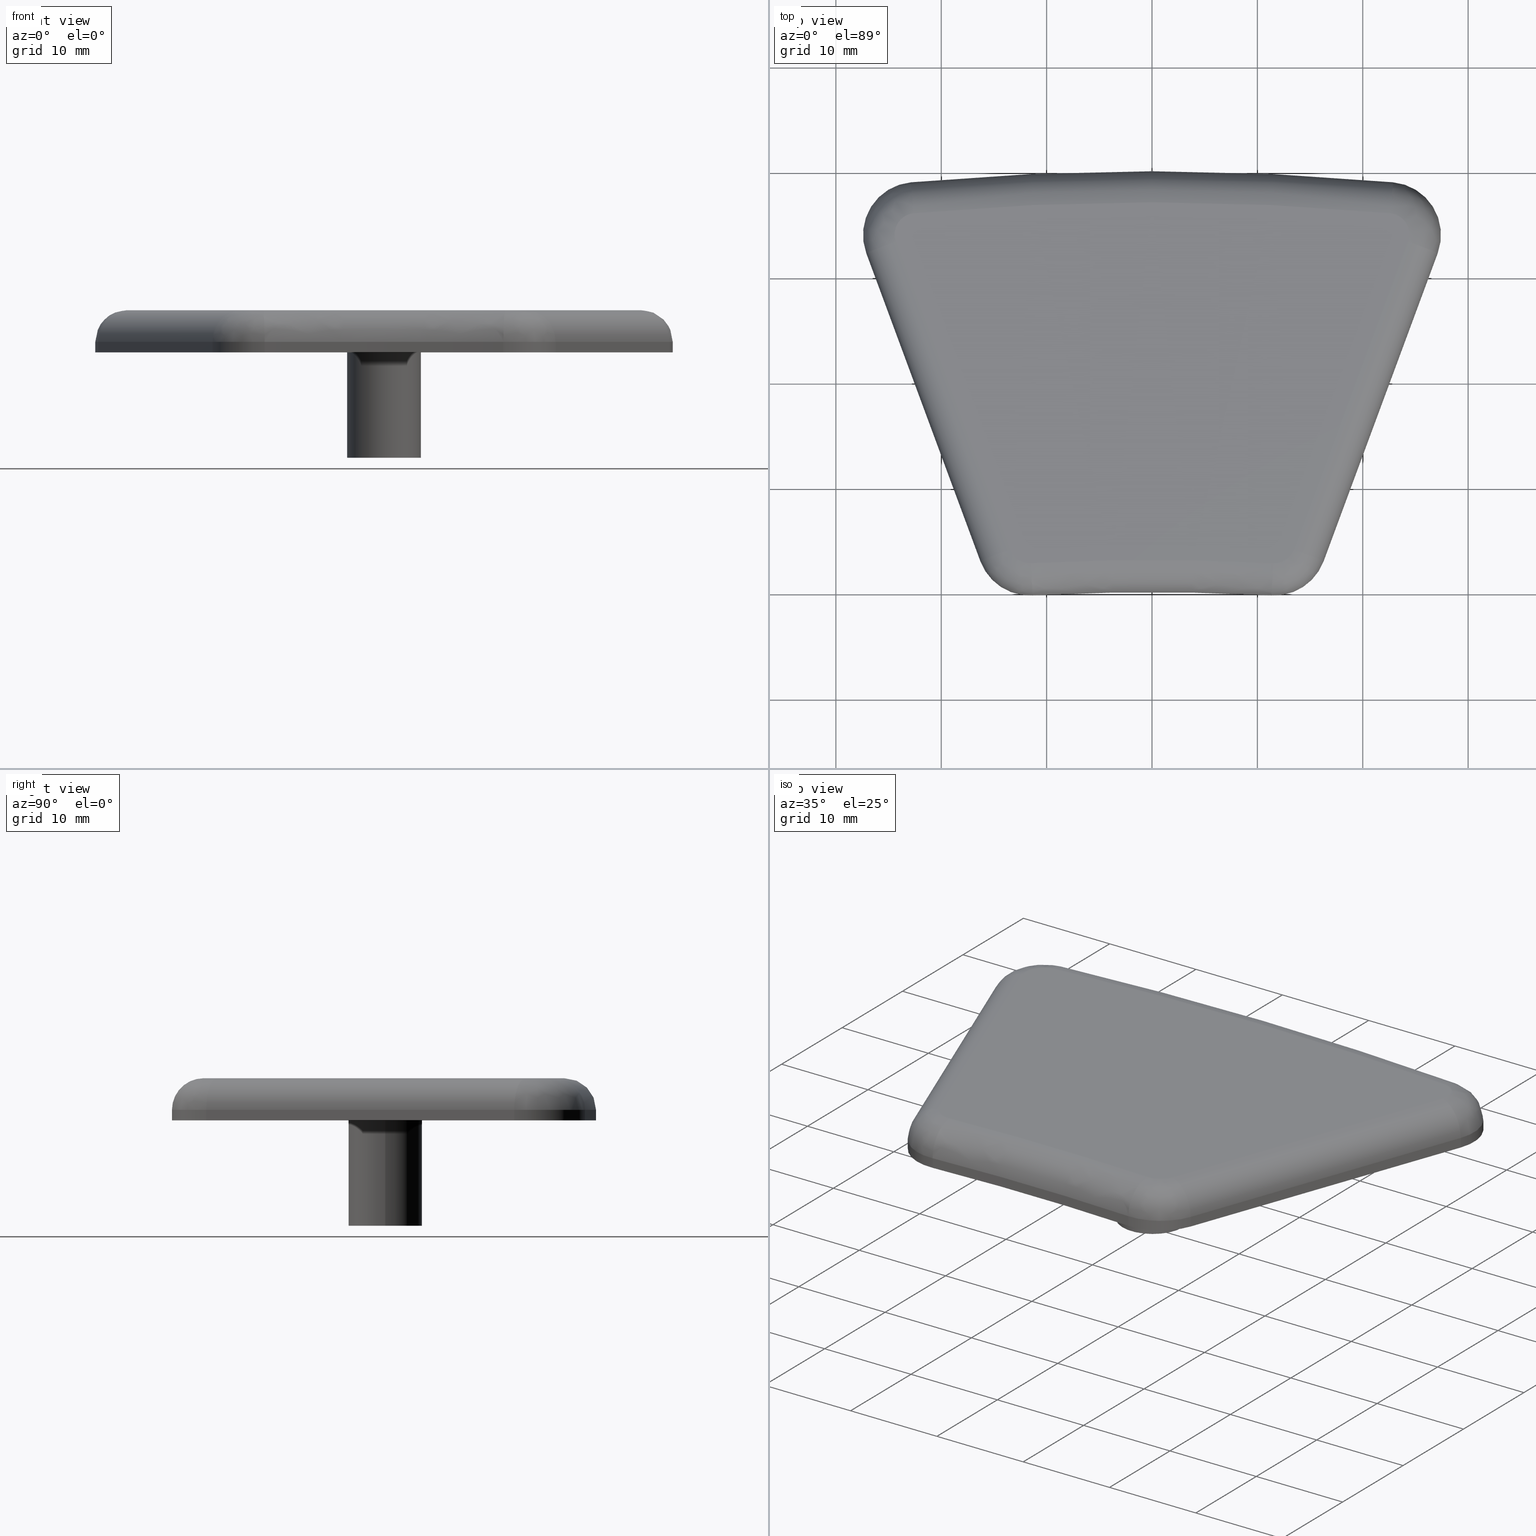
[diagram: canonical four-view strip — front | top / right | iso, engineering-drawing reading convention]
A machine part, canonical four-view strip (front | top / right | iso — engineering-drawing reading convention). The complete STEP part file that produces these views, byte-faithful:
ISO-10303-21;
HEADER;
/****************************************************************
 * Generated by software with PDE/Lib inside                    *
 * PDElib Version v4.4, created Mon 02/23/2004                  *
 * International Technegroup Inc. (www.iti-oh.com)              *
 ****************************************************************/
FILE_DESCRIPTION(('STEP AP203'),'2;1');
FILE_NAME('18.014.00.stp','2011-06-06T18:21:06',(''),(''),'2009.3.110','THINKDESIGN','');
FILE_SCHEMA(('CONFIG_CONTROL_DESIGN'));
ENDSEC;
DATA;
#2=CARTESIAN_POINT('',(-35.220002198517058,-24.523297898567506,0.0));
#3=DIRECTION('',(0.0,0.0,1.0));
#4=DIRECTION('',(1.0,0.0,0.0));
#5=AXIS2_PLACEMENT_3D('',#2,#3,#4);
#6=PLANE('',#5);
#7=CARTESIAN_POINT('',(22.883381529985783,18.950498793943183,0.0));
#8=VERTEX_POINT('',#7);
#9=CARTESIAN_POINT('',(27.114485447295095,12.234991950368126,0.0));
#10=VERTEX_POINT('',#9);
#11=CARTESIAN_POINT('',(22.425713899386064,13.971488818064330,0.0));
#12=DIRECTION('',(0.0,0.0,-1.0));
#13=DIRECTION('',(0.091533526119945,0.995801995175773,0.0));
#14=AXIS2_PLACEMENT_3D('',#11,#12,#13);
#15=CIRCLE('',#14,4.999999999999990);
#16=EDGE_CURVE('',#8,#10,#15,.T.);
#17=ORIENTED_EDGE('',*,*,#16,.T.);
#18=CARTESIAN_POINT('',(16.291249118133813,-16.989179714158627,0.0));
#19=VERTEX_POINT('',#18);
#20=CARTESIAN_POINT('',(16.291249118133813,-16.989179714158627,0.0));
#21=DIRECTION('',(0.347299373539241,0.937754309581807,0.0));
#22=VECTOR('',#21,31.163996119153349);
#23=LINE('',#20,#22);
#24=EDGE_CURVE('',#19,#10,#23,.T.);
#25=ORIENTED_EDGE('',*,*,#24,.F.);
#26=CARTESIAN_POINT('',(11.332728443000832,-20.245401084893473,0.0));
#27=VERTEX_POINT('',#26);
#28=CARTESIAN_POINT('',(11.602477570224773,-15.252682846462422,0.0));
#29=DIRECTION('',(0.0,0.0,-1.0));
#30=DIRECTION('',(0.937754309581807,-0.347299373539241,0.0));
#31=AXIS2_PLACEMENT_3D('',#28,#29,#30);
#32=CIRCLE('',#31,5.000000000000009);
#33=EDGE_CURVE('',#19,#27,#32,.T.);
#34=ORIENTED_EDGE('',*,*,#33,.T.);
#35=CARTESIAN_POINT('',(-11.332728443000939,-20.245401084893473,0.0));
#36=VERTEX_POINT('',#35);
#37=CARTESIAN_POINT('',(-3.907985E-014,-230.000000000000060,0.0));
#38=DIRECTION('',(0.0,0.0,-1.000000000000000));
#39=DIRECTION('',(0.071407991971395,0.997447190924218,0.0));
#40=AXIS2_PLACEMENT_3D('',#37,#38,#39);
#41=CIRCLE('',#40,210.060521040960960);
#42=EDGE_CURVE('',#36,#27,#41,.T.);
#43=ORIENTED_EDGE('',*,*,#42,.F.);
#44=CARTESIAN_POINT('',(-16.291249118133926,-16.989179714158624,0.0));
#45=VERTEX_POINT('',#44);
#46=CARTESIAN_POINT('',(-11.602477570224877,-15.252682846462420,0.0));
#47=DIRECTION('',(0.0,0.0,-1.0));
#48=DIRECTION('',(0.053949825444788,-0.998543647686208,0.0));
#49=AXIS2_PLACEMENT_3D('',#46,#47,#48);
#50=CIRCLE('',#49,5.000000000000015);
#51=EDGE_CURVE('',#36,#45,#50,.T.);
#52=ORIENTED_EDGE('',*,*,#51,.T.);
#53=CARTESIAN_POINT('',(-27.114485447295216,12.234991950368126,0.0));
#54=VERTEX_POINT('',#53);
#55=CARTESIAN_POINT('',(-27.114485447295216,12.234991950368133,0.0));
#56=DIRECTION('',(0.347299373539241,-0.937754309581807,0.0));
#57=VECTOR('',#56,31.163996119153353);
#58=LINE('',#55,#57);
#59=EDGE_CURVE('',#54,#45,#58,.T.);
#60=ORIENTED_EDGE('',*,*,#59,.F.);
#61=CARTESIAN_POINT('',(-22.883381529985897,18.950498793943183,0.0));
#62=VERTEX_POINT('',#61);
#63=CARTESIAN_POINT('',(-22.425713899386182,13.971488818064332,0.0));
#64=DIRECTION('',(0.0,0.0,-1.0));
#65=DIRECTION('',(-0.937754309581807,-0.347299373539241,0.0));
#66=AXIS2_PLACEMENT_3D('',#63,#64,#65);
#67=CIRCLE('',#66,5.000000000000001);
#68=EDGE_CURVE('',#54,#62,#67,.T.);
#69=ORIENTED_EDGE('',*,*,#68,.T.);
#70=CARTESIAN_POINT('',(-3.197442E-014,-230.0,0.0));
#71=DIRECTION('',(0.0,0.0,1.0));
#72=DIRECTION('',(0.117400000000000,0.993084709377805,0.0));
#73=AXIS2_PLACEMENT_3D('',#70,#71,#72);
#74=CIRCLE('',#73,250.0);
#75=EDGE_CURVE('',#8,#62,#74,.T.);
#76=ORIENTED_EDGE('',*,*,#75,.F.);
#77=EDGE_LOOP('',(#17,#25,#34,#43,#52,#60,#69,#76));
#78=FACE_OUTER_BOUND('',#77,.T.);
#79=CARTESIAN_POINT('',(-3.500000000000000,0.0,0.0));
#80=VERTEX_POINT('',#79);
#81=CARTESIAN_POINT('',(3.500000000000000,0.0,0.0));
#82=VERTEX_POINT('',#81);
#83=CARTESIAN_POINT('',(0.0,0.0,0.0));
#84=DIRECTION('',(0.0,0.0,-1.0));
#85=DIRECTION('',(1.0,0.0,0.0));
#86=AXIS2_PLACEMENT_3D('',#83,#84,#85);
#87=CIRCLE('',#86,3.500000000000000);
#88=EDGE_CURVE('',#80,#82,#87,.T.);
#89=ORIENTED_EDGE('',*,*,#88,.F.);
#90=CARTESIAN_POINT('',(0.0,0.0,0.0));
#91=DIRECTION('',(0.0,0.0,-1.0));
#92=DIRECTION('',(1.0,0.0,0.0));
#93=AXIS2_PLACEMENT_3D('',#90,#91,#92);
#94=CIRCLE('',#93,3.500000000000000);
#95=EDGE_CURVE('',#82,#80,#94,.T.);
#96=ORIENTED_EDGE('',*,*,#95,.F.);
#97=EDGE_LOOP('',(#89,#96));
#98=FACE_BOUND('',#97,.T.);
#99=ADVANCED_FACE('',(#78,#98),#6,.F.);
#100=CARTESIAN_POINT('',(-35.220002198517058,-24.523297898567506,4.0));
#101=DIRECTION('',(0.0,0.0,1.0));
#102=DIRECTION('',(1.0,0.0,0.0));
#103=AXIS2_PLACEMENT_3D('',#100,#101,#102);
#104=PLANE('',#103);
#105=CARTESIAN_POINT('',(13.477986189388396,-15.947281593540907,4.0));
#106=VERTEX_POINT('',#105);
#107=CARTESIAN_POINT('',(24.301222518549679,13.276890070985850,4.0));
#108=VERTEX_POINT('',#107);
#109=CARTESIAN_POINT('',(13.477986189388396,-15.947281593540907,4.0));
#110=DIRECTION('',(0.347299373539241,0.937754309581807,0.0));
#111=VECTOR('',#110,31.163996119153357);
#112=LINE('',#109,#111);
#113=EDGE_CURVE('',#106,#108,#112,.T.);
#114=ORIENTED_EDGE('',*,*,#113,.T.);
#115=CARTESIAN_POINT('',(22.608780951625953,15.963092808415865,4.0));
#116=VERTEX_POINT('',#115);
#117=CARTESIAN_POINT('',(22.425713899386064,13.971488818064330,4.0));
#118=DIRECTION('',(0.0,0.0,-1.0));
#119=DIRECTION('',(0.091533526119945,0.995801995175773,0.0));
#120=AXIS2_PLACEMENT_3D('',#117,#118,#119);
#121=CIRCLE('',#120,1.999999999999990);
#122=EDGE_CURVE('',#116,#108,#121,.T.);
#123=ORIENTED_EDGE('',*,*,#122,.F.);
#124=CARTESIAN_POINT('',(-22.608780951626066,15.963092808415876,4.0));
#125=VERTEX_POINT('',#124);
#126=CARTESIAN_POINT('',(-3.197442E-014,-230.0,4.0));
#127=DIRECTION('',(0.0,0.0,1.0));
#128=DIRECTION('',(0.117400000000000,0.993084709377805,0.0));
#129=AXIS2_PLACEMENT_3D('',#126,#127,#128);
#130=CIRCLE('',#129,247.0);
#131=EDGE_CURVE('',#116,#125,#130,.T.);
#132=ORIENTED_EDGE('',*,*,#131,.T.);
#133=CARTESIAN_POINT('',(-24.301222518549796,13.276890070985850,4.0));
#134=VERTEX_POINT('',#133);
#135=CARTESIAN_POINT('',(-22.425713899386182,13.971488818064332,4.0));
#136=DIRECTION('',(0.0,0.0,-1.0));
#137=DIRECTION('',(-0.937754309581807,-0.347299373539241,0.0));
#138=AXIS2_PLACEMENT_3D('',#135,#136,#137);
#139=CIRCLE('',#138,2.000000000000001);
#140=EDGE_CURVE('',#134,#125,#139,.T.);
#141=ORIENTED_EDGE('',*,*,#140,.F.);
#142=CARTESIAN_POINT('',(-13.477986189388506,-15.947281593540904,4.0));
#143=VERTEX_POINT('',#142);
#144=CARTESIAN_POINT('',(-24.301222518549796,13.276890070985850,4.0));
#145=DIRECTION('',(0.347299373539241,-0.937754309581807,0.0));
#146=VECTOR('',#145,31.163996119153349);
#147=LINE('',#144,#146);
#148=EDGE_CURVE('',#134,#143,#147,.T.);
#149=ORIENTED_EDGE('',*,*,#148,.T.);
#150=CARTESIAN_POINT('',(-11.494577919335303,-17.249770141834830,4.0));
#151=VERTEX_POINT('',#150);
#152=CARTESIAN_POINT('',(-11.602477570224877,-15.252682846462420,4.0));
#153=DIRECTION('',(0.0,0.0,-1.0));
#154=DIRECTION('',(0.053949825444788,-0.998543647686208,0.0));
#155=AXIS2_PLACEMENT_3D('',#152,#153,#154);
#156=CIRCLE('',#155,2.000000000000015);
#157=EDGE_CURVE('',#151,#143,#156,.T.);
#158=ORIENTED_EDGE('',*,*,#157,.F.);
#159=CARTESIAN_POINT('',(11.494577919335192,-17.249770141834844,4.0));
#160=VERTEX_POINT('',#159);
#161=CARTESIAN_POINT('',(-3.907985E-014,-230.000000000000060,4.000000000000002));
#162=DIRECTION('',(0.0,0.0,-1.000000000000000));
#163=DIRECTION('',(0.071407991971395,0.997447190924218,0.0));
#164=AXIS2_PLACEMENT_3D('',#161,#162,#163);
#165=CIRCLE('',#164,213.060521040960960);
#166=EDGE_CURVE('',#151,#160,#165,.T.);
#167=ORIENTED_EDGE('',*,*,#166,.T.);
#168=CARTESIAN_POINT('',(11.602477570224773,-15.252682846462422,4.0));
#169=DIRECTION('',(0.0,0.0,-1.0));
#170=DIRECTION('',(0.937754309581807,-0.347299373539241,0.0));
#171=AXIS2_PLACEMENT_3D('',#168,#169,#170);
#172=CIRCLE('',#171,2.000000000000009);
#173=EDGE_CURVE('',#106,#160,#172,.T.);
#174=ORIENTED_EDGE('',*,*,#173,.F.);
#175=EDGE_LOOP('',(#114,#123,#132,#141,#149,#158,#167,#174));
#176=FACE_OUTER_BOUND('',#175,.T.);
#177=ADVANCED_FACE('',(#176),#104,.T.);
#178=CARTESIAN_POINT('',(22.425713899386061,13.971488818064330,0.0));
#179=DIRECTION('',(0.0,0.0,-1.0));
#180=DIRECTION('',(0.091533526119945,0.995801995175773,0.0));
#181=AXIS2_PLACEMENT_3D('',#178,#179,#180);
#182=CYLINDRICAL_SURFACE('',#181,4.999999999999990);
#183=CARTESIAN_POINT('',(22.883381529985748,18.950498793943183,1.0));
#184=VERTEX_POINT('',#183);
#185=CARTESIAN_POINT('',(22.883381529985783,18.950498793943183,0.0));
#186=DIRECTION('',(0.0,0.0,1.0));
#187=VECTOR('',#186,1.0);
#188=LINE('',#185,#187);
#189=EDGE_CURVE('',#8,#184,#188,.T.);
#190=ORIENTED_EDGE('',*,*,#189,.T.);
#191=CARTESIAN_POINT('',(27.114485447295095,12.234991950368126,1.0));
#192=VERTEX_POINT('',#191);
#193=CARTESIAN_POINT('',(22.425713899386064,13.971488818064330,1.0));
#194=DIRECTION('',(0.0,0.0,-1.0));
#195=DIRECTION('',(0.091533526119945,0.995801995175773,0.0));
#196=AXIS2_PLACEMENT_3D('',#193,#194,#195);
#197=CIRCLE('',#196,4.999999999999990);
#198=EDGE_CURVE('',#184,#192,#197,.T.);
#199=ORIENTED_EDGE('',*,*,#198,.T.);
#200=CARTESIAN_POINT('',(27.114485447295095,12.234991950368126,0.0));
#201=DIRECTION('',(0.0,0.0,1.0));
#202=VECTOR('',#201,1.0);
#203=LINE('',#200,#202);
#204=EDGE_CURVE('',#10,#192,#203,.T.);
#205=ORIENTED_EDGE('',*,*,#204,.F.);
#206=ORIENTED_EDGE('',*,*,#16,.F.);
#207=EDGE_LOOP('',(#190,#199,#205,#206));
#208=FACE_OUTER_BOUND('',#207,.T.);
#209=ADVANCED_FACE('',(#208),#182,.T.);
#210=CARTESIAN_POINT('',(-3.552714E-014,-230.0,0.0));
#211=DIRECTION('',(0.0,0.0,1.0));
#212=DIRECTION('',(0.117400000000000,0.993084709377805,0.0));
#213=AXIS2_PLACEMENT_3D('',#210,#211,#212);
#214=CYLINDRICAL_SURFACE('',#213,250.0);
#215=ORIENTED_EDGE('',*,*,#75,.T.);
#216=CARTESIAN_POINT('',(-22.883381529985897,18.950498793943193,1.0));
#217=VERTEX_POINT('',#216);
#218=CARTESIAN_POINT('',(-22.883381529985897,18.950498793943183,0.0));
#219=DIRECTION('',(0.0,0.0,1.0));
#220=VECTOR('',#219,1.0);
#221=LINE('',#218,#220);
#222=EDGE_CURVE('',#62,#217,#221,.T.);
#223=ORIENTED_EDGE('',*,*,#222,.T.);
#224=CARTESIAN_POINT('',(-3.197442E-014,-230.0,1.0));
#225=DIRECTION('',(0.0,0.0,1.0));
#226=DIRECTION('',(0.117400000000000,0.993084709377805,0.0));
#227=AXIS2_PLACEMENT_3D('',#224,#225,#226);
#228=CIRCLE('',#227,250.0);
#229=EDGE_CURVE('',#184,#217,#228,.T.);
#230=ORIENTED_EDGE('',*,*,#229,.F.);
#231=ORIENTED_EDGE('',*,*,#189,.F.);
#232=EDGE_LOOP('',(#215,#223,#230,#231));
#233=FACE_OUTER_BOUND('',#232,.T.);
#234=ADVANCED_FACE('',(#233),#214,.T.);
#235=CARTESIAN_POINT('',(-22.425713899386182,13.971488818064330,0.0));
#236=DIRECTION('',(0.0,0.0,-1.0));
#237=DIRECTION('',(-0.937754309581807,-0.347299373539241,0.0));
#238=AXIS2_PLACEMENT_3D('',#235,#236,#237);
#239=CYLINDRICAL_SURFACE('',#238,5.000000000000001);
#240=CARTESIAN_POINT('',(-27.114485447295216,12.234991950368126,1.0));
#241=VERTEX_POINT('',#240);
#242=CARTESIAN_POINT('',(-27.114485447295216,12.234991950368126,0.0));
#243=DIRECTION('',(0.0,0.0,1.0));
#244=VECTOR('',#243,1.0);
#245=LINE('',#242,#244);
#246=EDGE_CURVE('',#54,#241,#245,.T.);
#247=ORIENTED_EDGE('',*,*,#246,.T.);
#248=CARTESIAN_POINT('',(-22.425713899386182,13.971488818064332,1.0));
#249=DIRECTION('',(0.0,0.0,-1.0));
#250=DIRECTION('',(-0.937754309581807,-0.347299373539241,0.0));
#251=AXIS2_PLACEMENT_3D('',#248,#249,#250);
#252=CIRCLE('',#251,5.000000000000001);
#253=EDGE_CURVE('',#241,#217,#252,.T.);
#254=ORIENTED_EDGE('',*,*,#253,.T.);
#255=ORIENTED_EDGE('',*,*,#222,.F.);
#256=ORIENTED_EDGE('',*,*,#68,.F.);
#257=EDGE_LOOP('',(#247,#254,#255,#256));
#258=FACE_OUTER_BOUND('',#257,.T.);
#259=ADVANCED_FACE('',(#258),#239,.T.);
#260=CARTESIAN_POINT('',(-29.350000000000055,18.271177344451317,0.0));
#261=DIRECTION('',(-0.937754309581807,-0.347299373539241,0.0));
#262=DIRECTION('',(0.347299373539241,-0.937754309581807,0.0));
#263=AXIS2_PLACEMENT_3D('',#260,#261,#262);
#264=PLANE('',#263);
#265=ORIENTED_EDGE('',*,*,#59,.T.);
#266=CARTESIAN_POINT('',(-16.291249118133926,-16.989179714158624,1.0));
#267=VERTEX_POINT('',#266);
#268=CARTESIAN_POINT('',(-16.291249118133926,-16.989179714158624,0.0));
#269=DIRECTION('',(0.0,0.0,1.0));
#270=VECTOR('',#269,1.0);
#271=LINE('',#268,#270);
#272=EDGE_CURVE('',#45,#267,#271,.T.);
#273=ORIENTED_EDGE('',*,*,#272,.T.);
#274=CARTESIAN_POINT('',(-27.114485447295216,12.234991950368126,1.0));
#275=DIRECTION('',(0.347299373539241,-0.937754309581807,0.0));
#276=VECTOR('',#275,31.163996119153346);
#277=LINE('',#274,#276);
#278=EDGE_CURVE('',#241,#267,#277,.T.);
#279=ORIENTED_EDGE('',*,*,#278,.F.);
#280=ORIENTED_EDGE('',*,*,#246,.F.);
#281=EDGE_LOOP('',(#265,#273,#279,#280));
#282=FACE_OUTER_BOUND('',#281,.T.);
#283=ADVANCED_FACE('',(#282),#264,.T.);
#284=CARTESIAN_POINT('',(-11.602477570224877,-15.252682846462420,0.0));
#285=DIRECTION('',(0.0,0.0,-1.0));
#286=DIRECTION('',(0.053949825444788,-0.998543647686208,0.0));
#287=AXIS2_PLACEMENT_3D('',#284,#285,#286);
#288=CYLINDRICAL_SURFACE('',#287,5.000000000000015);
#289=CARTESIAN_POINT('',(-11.332728443000917,-20.245401084893473,1.0));
#290=VERTEX_POINT('',#289);
#291=CARTESIAN_POINT('',(-11.332728443000939,-20.245401084893473,0.0));
#292=DIRECTION('',(0.0,0.0,1.0));
#293=VECTOR('',#292,1.0);
#294=LINE('',#291,#293);
#295=EDGE_CURVE('',#36,#290,#294,.T.);
#296=ORIENTED_EDGE('',*,*,#295,.T.);
#297=CARTESIAN_POINT('',(-11.602477570224877,-15.252682846462420,1.0));
#298=DIRECTION('',(0.0,0.0,-1.0));
#299=DIRECTION('',(0.053949825444788,-0.998543647686208,0.0));
#300=AXIS2_PLACEMENT_3D('',#297,#298,#299);
#301=CIRCLE('',#300,5.000000000000015);
#302=EDGE_CURVE('',#290,#267,#301,.T.);
#303=ORIENTED_EDGE('',*,*,#302,.T.);
#304=ORIENTED_EDGE('',*,*,#272,.F.);
#305=ORIENTED_EDGE('',*,*,#51,.F.);
#306=EDGE_LOOP('',(#296,#303,#304,#305));
#307=FACE_OUTER_BOUND('',#306,.T.);
#308=ADVANCED_FACE('',(#307),#288,.T.);
#309=CARTESIAN_POINT('',(-3.552714E-014,-230.0,0.0));
#310=DIRECTION('',(0.0,0.0,-1.0));
#311=DIRECTION('',(-0.071407991971396,0.997447190924218,0.0));
#312=AXIS2_PLACEMENT_3D('',#309,#310,#311);
#313=CYLINDRICAL_SURFACE('',#312,210.060521040960960);
#314=ORIENTED_EDGE('',*,*,#42,.T.);
#315=CARTESIAN_POINT('',(11.332728443000832,-20.245401084893466,1.0));
#316=VERTEX_POINT('',#315);
#317=CARTESIAN_POINT('',(11.332728443000832,-20.245401084893473,0.0));
#318=DIRECTION('',(0.0,0.0,1.0));
#319=VECTOR('',#318,1.0);
#320=LINE('',#317,#319);
#321=EDGE_CURVE('',#27,#316,#320,.T.);
#322=ORIENTED_EDGE('',*,*,#321,.T.);
#323=CARTESIAN_POINT('',(-3.907985E-014,-230.000000000000060,1.000000000000000));
#324=DIRECTION('',(0.0,0.0,-1.000000000000000));
#325=DIRECTION('',(0.071407991971395,0.997447190924218,0.0));
#326=AXIS2_PLACEMENT_3D('',#323,#324,#325);
#327=CIRCLE('',#326,210.060521040960960);
#328=EDGE_CURVE('',#290,#316,#327,.T.);
#329=ORIENTED_EDGE('',*,*,#328,.F.);
#330=ORIENTED_EDGE('',*,*,#295,.F.);
#331=EDGE_LOOP('',(#314,#322,#329,#330));
#332=FACE_OUTER_BOUND('',#331,.T.);
#333=ADVANCED_FACE('',(#332),#313,.F.);
#334=CARTESIAN_POINT('',(11.602477570224771,-15.252682846462420,0.0));
#335=DIRECTION('',(0.0,0.0,-1.0));
#336=DIRECTION('',(0.937754309581807,-0.347299373539241,0.0));
#337=AXIS2_PLACEMENT_3D('',#334,#335,#336);
#338=CYLINDRICAL_SURFACE('',#337,5.000000000000009);
#339=CARTESIAN_POINT('',(16.291249118133813,-16.989179714158627,1.0));
#340=VERTEX_POINT('',#339);
#341=CARTESIAN_POINT('',(16.291249118133813,-16.989179714158627,0.0));
#342=DIRECTION('',(0.0,0.0,1.0));
#343=VECTOR('',#342,1.0);
#344=LINE('',#341,#343);
#345=EDGE_CURVE('',#19,#340,#344,.T.);
#346=ORIENTED_EDGE('',*,*,#345,.T.);
#347=CARTESIAN_POINT('',(11.602477570224773,-15.252682846462422,1.0));
#348=DIRECTION('',(0.0,0.0,-1.0));
#349=DIRECTION('',(0.937754309581807,-0.347299373539241,0.0));
#350=AXIS2_PLACEMENT_3D('',#347,#348,#349);
#351=CIRCLE('',#350,5.000000000000009);
#352=EDGE_CURVE('',#340,#316,#351,.T.);
#353=ORIENTED_EDGE('',*,*,#352,.T.);
#354=ORIENTED_EDGE('',*,*,#321,.F.);
#355=ORIENTED_EDGE('',*,*,#33,.F.);
#356=EDGE_LOOP('',(#346,#353,#354,#355));
#357=FACE_OUTER_BOUND('',#356,.T.);
#358=ADVANCED_FACE('',(#357),#338,.T.);
#359=CARTESIAN_POINT('',(14.999999999999950,-20.475723363615913,0.0));
#360=DIRECTION('',(0.937754309581807,-0.347299373539241,0.0));
#361=DIRECTION('',(0.347299373539241,0.937754309581807,0.0));
#362=AXIS2_PLACEMENT_3D('',#359,#360,#361);
#363=PLANE('',#362);
#364=ORIENTED_EDGE('',*,*,#24,.T.);
#365=ORIENTED_EDGE('',*,*,#204,.T.);
#366=CARTESIAN_POINT('',(16.291249118133813,-16.989179714158627,1.0));
#367=DIRECTION('',(0.347299373539241,0.937754309581807,0.0));
#368=VECTOR('',#367,31.163996119153353);
#369=LINE('',#366,#368);
#370=EDGE_CURVE('',#340,#192,#369,.T.);
#371=ORIENTED_EDGE('',*,*,#370,.F.);
#372=ORIENTED_EDGE('',*,*,#345,.F.);
#373=EDGE_LOOP('',(#364,#365,#371,#372));
#374=FACE_OUTER_BOUND('',#373,.T.);
#375=ADVANCED_FACE('',(#374),#363,.T.);
#376=CARTESIAN_POINT('',(13.477986189388396,-15.947281593540907,1.0));
#377=DIRECTION('',(-0.347299373539241,-0.937754309581807,0.0));
#378=DIRECTION('',(0.937754309581807,-0.347299373539241,0.0));
#379=AXIS2_PLACEMENT_3D('',#376,#377,#378);
#380=CYLINDRICAL_SURFACE('',#379,2.999999999999996);
#381=ORIENTED_EDGE('',*,*,#370,.T.);
#382=CARTESIAN_POINT('',(24.301222518549679,13.276890070985857,1.0));
#383=DIRECTION('',(0.347299373539241,0.937754309581807,0.0));
#384=DIRECTION('',(0.937754309581807,-0.347299373539241,0.0));
#385=AXIS2_PLACEMENT_3D('',#382,#383,#384);
#386=CIRCLE('',#385,2.999999999999996);
#387=EDGE_CURVE('',#108,#192,#386,.T.);
#388=ORIENTED_EDGE('',*,*,#387,.F.);
#389=ORIENTED_EDGE('',*,*,#113,.F.);
#390=CARTESIAN_POINT('',(13.477986189388398,-15.947281593540907,1.0));
#391=DIRECTION('',(-0.347299373539241,-0.937754309581807,0.0));
#392=DIRECTION('',(0.937754309581807,-0.347299373539241,0.0));
#393=AXIS2_PLACEMENT_3D('',#390,#391,#392);
#394=CIRCLE('',#393,2.999999999999996);
#395=EDGE_CURVE('',#340,#106,#394,.T.);
#396=ORIENTED_EDGE('',*,*,#395,.F.);
#397=EDGE_LOOP('',(#381,#388,#389,#396));
#398=FACE_OUTER_BOUND('',#397,.T.);
#399=ADVANCED_FACE('',(#398),#380,.T.);
#400=CARTESIAN_POINT('',(16.291249118133813,-16.989179714158627,1.0));
#401=CARTESIAN_POINT('',(16.291249118133813,-16.989179714158627,1.390180644032257));
#402=CARTESIAN_POINT('',(16.144850358430009,-16.934960611124346,2.179083452029826));
#403=CARTESIAN_POINT('',(15.518763441268515,-16.703087942676394,3.176238734418841));
#404=CARTESIAN_POINT('',(14.583676777885955,-16.356776537781350,3.843883671652662));
#405=CARTESIAN_POINT('',(13.843879769845046,-16.082791086780446,4.0));
#406=CARTESIAN_POINT('',(13.477986189388393,-15.947281593540906,4.0));
#407=CARTESIAN_POINT('',(16.108229000586050,-17.483358273197112,1.0));
#408=CARTESIAN_POINT('',(16.108229000586050,-17.483358273197112,1.390180644032256));
#409=CARTESIAN_POINT('',(15.967544726635300,-17.413709301725820,2.179083452029826));
#410=CARTESIAN_POINT('',(15.365896300452340,-17.115849470671556,3.176238734418841));
#411=CARTESIAN_POINT('',(14.467309532469020,-16.670983513658783,3.843883671652662));
#412=CARTESIAN_POINT('',(13.756389541358800,-16.319026292082349,4.0));
#413=CARTESIAN_POINT('',(13.404778142369283,-16.144953017156297,4.0));
#414=CARTESIAN_POINT('',(15.580730669893455,-18.419984802746466,1.000000000000000));
#415=CARTESIAN_POINT('',(15.580730669893455,-18.419984802746466,1.390180644032256));
#416=CARTESIAN_POINT('',(15.456516616462121,-18.321091292309994,2.179083452029825));
#417=CARTESIAN_POINT('',(14.925304508256403,-17.898164669149232,3.176238734418839));
#418=CARTESIAN_POINT('',(14.131917289653389,-17.266506293823277,3.843883671652662));
#419=CARTESIAN_POINT('',(13.504226281402662,-16.766767612405555,3.999999999999999));
#420=CARTESIAN_POINT('',(13.193778810092248,-16.519603628976046,3.999999999999999));
#421=CARTESIAN_POINT('',(14.393379331441839,-19.502622426625813,1.000000000000000));
#422=CARTESIAN_POINT('',(14.393379331441839,-19.502622426625813,1.390180644032257));
#423=CARTESIAN_POINT('',(14.306238264293974,-19.369925434035174,2.179083452029827));
#424=CARTESIAN_POINT('',(13.933571978055264,-18.802435305186030,3.176238734418841));
#425=CARTESIAN_POINT('',(13.376979491289987,-17.954865364747235,3.843883671652663));
#426=CARTESIAN_POINT('',(12.936629444036086,-17.284307511025048,4.000000000000001));
#427=CARTESIAN_POINT('',(12.718838274711603,-16.952658678527783,4.000000000000001));
#428=CARTESIAN_POINT('',(12.928058967339975,-20.161973362099719,1.000000000000000));
#429=CARTESIAN_POINT('',(12.928058967339975,-20.161973362099719,1.390180644032256));
#430=CARTESIAN_POINT('',(12.886669987211345,-20.008689280081381,2.179083452029826));
#431=CARTESIAN_POINT('',(12.709666445476277,-19.353156688446326,3.176238734418841));
#432=CARTESIAN_POINT('',(12.445304347002272,-18.374091694356320,3.843883671652663));
#433=CARTESIAN_POINT('',(12.236153369719567,-17.599501079743909,3.999999999999999));
#434=CARTESIAN_POINT('',(12.132710129070848,-17.216399052717350,3.999999999999999));
#435=CARTESIAN_POINT('',(11.858941818837684,-20.273831609526919,1.0));
#436=CARTESIAN_POINT('',(11.858941818837684,-20.273831609526919,1.390180644032256));
#437=CARTESIAN_POINT('',(11.850934167468525,-20.117054947731827,2.179083452029826));
#438=CARTESIAN_POINT('',(11.816688756034941,-19.446586037580246,3.176238734418841));
#439=CARTESIAN_POINT('',(11.765541819985286,-18.445213035030093,3.843883671652663));
#440=CARTESIAN_POINT('',(11.725076746808941,-17.652973363319077,4.0));
#441=CARTESIAN_POINT('',(11.705063269669935,-17.261142351688211,4.0));
#442=CARTESIAN_POINT('',(11.332728443000832,-20.245401084893466,1.0));
#443=CARTESIAN_POINT('',(11.332728443000832,-20.245401084893466,1.390180644032256));
#444=CARTESIAN_POINT('',(11.341150891664252,-20.089512116922144,2.179083452029826));
#445=CARTESIAN_POINT('',(11.377170219487107,-19.422839505937443,3.176238734418840));
#446=CARTESIAN_POINT('',(11.430966572913347,-18.427136432951151,3.843883671652662));
#447=CARTESIAN_POINT('',(11.473527741697717,-17.639382545383366,4.0));
#448=CARTESIAN_POINT('',(11.494577919335192,-17.249770141834844,4.0));
#449=B_SPLINE_SURFACE_WITH_KNOTS('',3,3,((#400,#407,#414,#421,#428,#435,#442),(#401,#408,#415,#422,#429,#436,#443),(#402,#409,#416,#423,#430,#437,#444),(#403,#410,#417,#424,#431,#438,#445),(#404,#411,#418,#425,#432,#439,#446),(#405,#412,#419,#426,#433,#440,#447),(#406,#413,#420,#427,#434,#441,#448)),.UNSPECIFIED.,.F.,.F.,.U.,(4,1,1,1,4),(4,1,1,1,4),(0.0,1.170541932096769,2.341083864193539,3.511625796290308,4.682167728387078),(0.0,1.204109657954585,2.408219315909169,3.612328973863754,4.816438631818338),.UNSPECIFIED.);
#450=ORIENTED_EDGE('',*,*,#395,.T.);
#451=ORIENTED_EDGE('',*,*,#173,.T.);
#452=CARTESIAN_POINT('',(11.494577919335194,-17.249770141834833,1.0));
#453=DIRECTION('',(0.998543647686208,-0.053949825444777,0.0));
#454=DIRECTION('',(-0.053949825444777,-0.998543647686208,0.0));
#455=AXIS2_PLACEMENT_3D('',#452,#453,#454);
#456=CIRCLE('',#455,3.000000000000019);
#457=EDGE_CURVE('',#160,#316,#456,.T.);
#458=ORIENTED_EDGE('',*,*,#457,.T.);
#459=ORIENTED_EDGE('',*,*,#352,.F.);
#460=EDGE_LOOP('',(#450,#451,#458,#459));
#461=FACE_OUTER_BOUND('',#460,.T.);
#462=ADVANCED_FACE('',(#461),#449,.T.);
#463=CARTESIAN_POINT('',(-11.332728443000919,-20.245401084893473,1.0));
#464=CARTESIAN_POINT('',(-11.332728443000919,-20.245401084893469,1.390180644032259));
#465=CARTESIAN_POINT('',(-11.341150891664341,-20.089512116922140,2.179083452029833));
#466=CARTESIAN_POINT('',(-11.377170219487205,-19.422839505937439,3.176238734418849));
#467=CARTESIAN_POINT('',(-11.430966572913450,-18.427136432951144,3.843883671652669));
#468=CARTESIAN_POINT('',(-11.473527741697826,-17.639382545383352,4.000000000000002));
#469=CARTESIAN_POINT('',(-11.494577919335303,-17.249770141834830,4.0));
#470=CARTESIAN_POINT('',(-9.445832262894417,-20.143454895775882,1.0));
#471=CARTESIAN_POINT('',(-9.445832262894417,-20.143454895775882,1.390180644032257));
#472=CARTESIAN_POINT('',(-9.452852376163492,-19.987490161712692,2.179083452029825));
#473=CARTESIAN_POINT('',(-9.482874495774688,-19.320493530504223,3.176238734418841));
#474=CARTESIAN_POINT('',(-9.527713771097970,-18.324306519934165,3.843883671652664));
#475=CARTESIAN_POINT('',(-9.563188516943333,-17.536169763493817,4.0));
#476=CARTESIAN_POINT('',(-9.580733845772821,-17.146367998186456,4.0));
#477=CARTESIAN_POINT('',(-5.669092009411111,-19.990479909390430,1.000000000000000));
#478=CARTESIAN_POINT('',(-5.669092009411111,-19.990479909390430,1.390180644032252));
#479=CARTESIAN_POINT('',(-5.673305261026346,-19.834401484791371,2.179083452029814));
#480=CARTESIAN_POINT('',(-5.691323594790542,-19.166918646204792,3.176238734418828));
#481=CARTESIAN_POINT('',(-5.718234720286768,-18.170005464838855,3.843883671652656));
#482=CARTESIAN_POINT('',(-5.739525549152941,-17.381294195892711,3.999999999999998));
#483=CARTESIAN_POINT('',(-5.750055704749762,-16.991208284481107,4.000000000000001));
#484=CARTESIAN_POINT('',(-2.375877E-014,-19.913978483863335,1.000000000000000));
#485=CARTESIAN_POINT('',(-2.375877E-014,-19.913978483863335,1.390180644032258));
#486=CARTESIAN_POINT('',(-2.464695E-014,-19.757843203641844,2.179083452029829));
#487=CARTESIAN_POINT('',(-3.375078E-014,-19.090117217084423,3.176238734418849));
#488=CARTESIAN_POINT('',(-4.463097E-014,-18.092840884183865,3.843883671652668));
#489=CARTESIAN_POINT('',(-5.306866E-014,-17.303842306660577,4.0));
#490=CARTESIAN_POINT('',(-5.795364E-014,-16.913614296317995,3.999999999999999));
#491=CARTESIAN_POINT('',(5.669092009411053,-19.990479909390430,1.000000000000000));
#492=CARTESIAN_POINT('',(5.669092009411053,-19.990479909390430,1.390180644032253));
#493=CARTESIAN_POINT('',(5.673305261026282,-19.834401484791375,2.179083452029815));
#494=CARTESIAN_POINT('',(5.691323594790472,-19.166918646204792,3.176238734418826));
#495=CARTESIAN_POINT('',(5.718234720286676,-18.170005464838859,3.843883671652656));
#496=CARTESIAN_POINT('',(5.739525549152834,-17.381294195892714,3.999999999999998));
#497=CARTESIAN_POINT('',(5.750055704749649,-16.991208284481111,4.000000000000001));
#498=CARTESIAN_POINT('',(9.445832262894363,-20.143454895775882,1.0));
#499=CARTESIAN_POINT('',(9.445832262894363,-20.143454895775882,1.390180644032256));
#500=CARTESIAN_POINT('',(9.452852376163435,-19.987490161712692,2.179083452029825));
#501=CARTESIAN_POINT('',(9.482874495774619,-19.320493530504223,3.176238734418839));
#502=CARTESIAN_POINT('',(9.527713771097883,-18.324306519934165,3.843883671652663));
#503=CARTESIAN_POINT('',(9.563188516943232,-17.536169763493817,4.000000000000000));
#504=CARTESIAN_POINT('',(9.580733845772713,-17.146367998186456,4.0));
#505=CARTESIAN_POINT('',(11.332728443000864,-20.245401084893473,1.0));
#506=CARTESIAN_POINT('',(11.332728443000864,-20.245401084893473,1.390180644032259));
#507=CARTESIAN_POINT('',(11.341150891664284,-20.089512116922140,2.179083452029831));
#508=CARTESIAN_POINT('',(11.377170219487134,-19.422839505937439,3.176238734418848));
#509=CARTESIAN_POINT('',(11.430966572913363,-18.427136432951144,3.843883671652669));
#510=CARTESIAN_POINT('',(11.473527741697724,-17.639382545383352,4.000000000000002));
#511=CARTESIAN_POINT('',(11.494577919335194,-17.249770141834830,4.0));
#512=B_SPLINE_SURFACE_WITH_KNOTS('',3,3,((#463,#470,#477,#484,#491,#498,#505),(#464,#471,#478,#485,#492,#499,#506),(#465,#472,#479,#486,#493,#500,#507),(#466,#473,#480,#487,#494,#501,#508),(#467,#474,#481,#488,#495,#502,#509),(#468,#475,#482,#489,#496,#503,#510),(#469,#476,#483,#490,#497,#504,#511)),.UNSPECIFIED.,.F.,.F.,.U.,(4,1,1,1,4),(4,1,1,1,4),(0.0,1.170541932096770,2.341083864193539,3.511625796290308,4.682167728387078),(0.0,5.701107811502860,11.402215623005713,17.103323434508575,22.804431246011429),.UNSPECIFIED.);
#513=ORIENTED_EDGE('',*,*,#457,.F.);
#514=ORIENTED_EDGE('',*,*,#166,.F.);
#515=CARTESIAN_POINT('',(-11.494577919335306,-17.249770141834830,1.0));
#516=DIRECTION('',(-0.998543647686207,-0.053949825444795,0.0));
#517=DIRECTION('',(0.053949825444795,-0.998543647686207,0.0));
#518=AXIS2_PLACEMENT_3D('',#515,#516,#517);
#519=CIRCLE('',#518,3.000000000000021);
#520=EDGE_CURVE('',#290,#151,#519,.T.);
#521=ORIENTED_EDGE('',*,*,#520,.F.);
#522=ORIENTED_EDGE('',*,*,#328,.T.);
#523=EDGE_LOOP('',(#513,#514,#521,#522));
#524=FACE_OUTER_BOUND('',#523,.T.);
#525=ADVANCED_FACE('',(#524),#512,.F.);
#526=CARTESIAN_POINT('',(-11.332728443000939,-20.245401084893473,1.0));
#527=CARTESIAN_POINT('',(-11.332728443000939,-20.245401084893473,1.390180644032256));
#528=CARTESIAN_POINT('',(-11.341150891664359,-20.089512116922148,2.179083452029824));
#529=CARTESIAN_POINT('',(-11.377170219487221,-19.422839505937457,3.176238734418842));
#530=CARTESIAN_POINT('',(-11.430966572913455,-18.427136432951166,3.843883671652662));
#531=CARTESIAN_POINT('',(-11.473527741697827,-17.639382545383373,4.0));
#532=CARTESIAN_POINT('',(-11.494577919335303,-17.249770141834851,4.0));
#533=CARTESIAN_POINT('',(-11.858941818837792,-20.273831609526919,1.0));
#534=CARTESIAN_POINT('',(-11.858941818837792,-20.273831609526919,1.390180644032256));
#535=CARTESIAN_POINT('',(-11.850934167468631,-20.117054947731830,2.179083452029824));
#536=CARTESIAN_POINT('',(-11.816688756035054,-19.446586037580264,3.176238734418841));
#537=CARTESIAN_POINT('',(-11.765541819985394,-18.445213035030104,3.843883671652662));
#538=CARTESIAN_POINT('',(-11.725076746809052,-17.652973363319084,4.000000000000000));
#539=CARTESIAN_POINT('',(-11.705063269670045,-17.261142351688225,4.0));
#540=CARTESIAN_POINT('',(-12.928058967340089,-20.161973362099733,1.0));
#541=CARTESIAN_POINT('',(-12.928058967340089,-20.161973362099733,1.390180644032256));
#542=CARTESIAN_POINT('',(-12.886669987211455,-20.008689280081395,2.179083452029826));
#543=CARTESIAN_POINT('',(-12.709666445476397,-19.353156688446354,3.176238734418840));
#544=CARTESIAN_POINT('',(-12.445304347002391,-18.374091694356338,3.843883671652662));
#545=CARTESIAN_POINT('',(-12.236153369719686,-17.599501079743924,4.000000000000000));
#546=CARTESIAN_POINT('',(-12.132710129070968,-17.216399052717364,4.0));
#547=CARTESIAN_POINT('',(-14.393379331441940,-19.502622426625805,1.000000000000000));
#548=CARTESIAN_POINT('',(-14.393379331441940,-19.502622426625805,1.390180644032256));
#549=CARTESIAN_POINT('',(-14.306238264294082,-19.369925434035174,2.179083452029826));
#550=CARTESIAN_POINT('',(-13.933571978055378,-18.802435305186027,3.176238734418841));
#551=CARTESIAN_POINT('',(-13.376979491290090,-17.954865364747224,3.843883671652663));
#552=CARTESIAN_POINT('',(-12.936629444036193,-17.284307511025041,3.999999999999999));
#553=CARTESIAN_POINT('',(-12.718838274711707,-16.952658678527772,3.999999999999999));
#554=CARTESIAN_POINT('',(-15.580730669893576,-18.419984802746473,1.000000000000000));
#555=CARTESIAN_POINT('',(-15.580730669893576,-18.419984802746473,1.390180644032257));
#556=CARTESIAN_POINT('',(-15.456516616462235,-18.321091292309998,2.179083452029825));
#557=CARTESIAN_POINT('',(-14.925304508256525,-17.898164669149246,3.176238734418841));
#558=CARTESIAN_POINT('',(-14.131917289653515,-17.266506293823298,3.843883671652663));
#559=CARTESIAN_POINT('',(-13.504226281402776,-16.766767612405555,4.000000000000001));
#560=CARTESIAN_POINT('',(-13.193778810092368,-16.519603628976050,4.000000000000001));
#561=CARTESIAN_POINT('',(-16.108229000586160,-17.483358273197108,1.0));
#562=CARTESIAN_POINT('',(-16.108229000586160,-17.483358273197108,1.390180644032256));
#563=CARTESIAN_POINT('',(-15.967544726635410,-17.413709301725820,2.179083452029824));
#564=CARTESIAN_POINT('',(-15.365896300452460,-17.115849470671559,3.176238734418841));
#565=CARTESIAN_POINT('',(-14.467309532469132,-16.670983513658783,3.843883671652663));
#566=CARTESIAN_POINT('',(-13.756389541358924,-16.319026292082352,4.0));
#567=CARTESIAN_POINT('',(-13.404778142369398,-16.144953017156297,4.0));
#568=CARTESIAN_POINT('',(-16.291249118133926,-16.989179714158624,1.0));
#569=CARTESIAN_POINT('',(-16.291249118133926,-16.989179714158624,1.390180644032256));
#570=CARTESIAN_POINT('',(-16.144850358430119,-16.934960611124346,2.179083452029824));
#571=CARTESIAN_POINT('',(-15.518763441268636,-16.703087942676397,3.176238734418842));
#572=CARTESIAN_POINT('',(-14.583676777886069,-16.356776537781347,3.843883671652662));
#573=CARTESIAN_POINT('',(-13.843879769845159,-16.082791086780443,4.0));
#574=CARTESIAN_POINT('',(-13.477986189388506,-15.947281593540904,4.0));
#575=B_SPLINE_SURFACE_WITH_KNOTS('',3,3,((#526,#533,#540,#547,#554,#561,#568),(#527,#534,#541,#548,#555,#562,#569),(#528,#535,#542,#549,#556,#563,#570),(#529,#536,#543,#550,#557,#564,#571),(#530,#537,#544,#551,#558,#565,#572),(#531,#538,#545,#552,#559,#566,#573),(#532,#539,#546,#553,#560,#567,#574)),.UNSPECIFIED.,.F.,.F.,.U.,(4,1,1,1,4),(4,1,1,1,4),(0.0,1.170541932096769,2.341083864193539,3.511625796290308,4.682167728387078),(0.0,1.204109657954587,2.408219315909174,3.612328973863761,4.816438631818349),.UNSPECIFIED.);
#576=ORIENTED_EDGE('',*,*,#520,.T.);
#577=ORIENTED_EDGE('',*,*,#157,.T.);
#578=CARTESIAN_POINT('',(-13.477986189388496,-15.947281593540907,1.0));
#579=DIRECTION('',(0.347299373539241,-0.937754309581807,0.0));
#580=DIRECTION('',(-0.937754309581807,-0.347299373539241,0.0));
#581=AXIS2_PLACEMENT_3D('',#578,#579,#580);
#582=CIRCLE('',#581,3.000000000000000);
#583=EDGE_CURVE('',#143,#267,#582,.T.);
#584=ORIENTED_EDGE('',*,*,#583,.T.);
#585=ORIENTED_EDGE('',*,*,#302,.F.);
#586=EDGE_LOOP('',(#576,#577,#584,#585));
#587=FACE_OUTER_BOUND('',#586,.T.);
#588=ADVANCED_FACE('',(#587),#575,.T.);
#589=CARTESIAN_POINT('',(-24.301222518549796,13.276890070985850,1.0));
#590=DIRECTION('',(-0.347299373539241,0.937754309581807,0.0));
#591=DIRECTION('',(-0.937754309581807,-0.347299373539241,0.0));
#592=AXIS2_PLACEMENT_3D('',#589,#590,#591);
#593=CYLINDRICAL_SURFACE('',#592,3.000000000000000);
#594=ORIENTED_EDGE('',*,*,#583,.F.);
#595=ORIENTED_EDGE('',*,*,#148,.F.);
#596=CARTESIAN_POINT('',(-24.301222518549800,13.276890070985850,1.0));
#597=DIRECTION('',(-0.347299373539241,0.937754309581807,0.0));
#598=DIRECTION('',(-0.937754309581807,-0.347299373539241,0.0));
#599=AXIS2_PLACEMENT_3D('',#596,#597,#598);
#600=CIRCLE('',#599,3.000000000000000);
#601=EDGE_CURVE('',#241,#134,#600,.T.);
#602=ORIENTED_EDGE('',*,*,#601,.F.);
#603=ORIENTED_EDGE('',*,*,#278,.T.);
#604=EDGE_LOOP('',(#594,#595,#602,#603));
#605=FACE_OUTER_BOUND('',#604,.T.);
#606=ADVANCED_FACE('',(#605),#593,.T.);
#607=CARTESIAN_POINT('',(-27.114485447295216,12.234991950368126,1.0));
#608=CARTESIAN_POINT('',(-27.114485447295216,12.234991950368126,1.390180644032257));
#609=CARTESIAN_POINT('',(-26.968086687591406,12.289211053402402,2.179083452029826));
#610=CARTESIAN_POINT('',(-26.341999770429922,12.521083721850356,3.176238734418843));
#611=CARTESIAN_POINT('',(-25.406913107047359,12.867395126745407,3.843883671652661));
#612=CARTESIAN_POINT('',(-24.667116099006449,13.141380577746309,4.0));
#613=CARTESIAN_POINT('',(-24.301222518549796,13.276890070985850,4.0));
#614=CARTESIAN_POINT('',(-27.246879719660413,12.592474021842076,1.0));
#615=CARTESIAN_POINT('',(-27.246879719660413,12.592474021842076,1.390180644032257));
#616=CARTESIAN_POINT('',(-27.096347178417432,12.635531367186648,2.179083452029826));
#617=CARTESIAN_POINT('',(-26.452581788123286,12.819669816600308,3.176238734418843));
#618=CARTESIAN_POINT('',(-25.491091595131305,13.094688194309445,3.843883671652661));
#619=CARTESIAN_POINT('',(-24.730405344444055,13.312269923311428,4.0));
#620=CARTESIAN_POINT('',(-24.354180227495888,13.419882899575425,4.0));
#621=CARTESIAN_POINT('',(-27.430182153178293,13.340682839310919,1.0));
#622=CARTESIAN_POINT('',(-27.430182153178293,13.340682839310919,1.390180644032257));
#623=CARTESIAN_POINT('',(-27.273926311355716,13.360378661971422,2.179083452029824));
#624=CARTESIAN_POINT('',(-26.605684732717393,13.444609545589733,3.176238734418844));
#625=CARTESIAN_POINT('',(-25.607638341754011,13.570411848365048,3.843883671652661));
#626=CARTESIAN_POINT('',(-24.818030530163746,13.669940769953083,4.0));
#627=CARTESIAN_POINT('',(-24.427501200903027,13.719166426562968,4.0));
#628=CARTESIAN_POINT('',(-27.442526430284172,14.493848792675701,1.0));
#629=CARTESIAN_POINT('',(-27.442526430284172,14.493848792675701,1.390180644032256));
#630=CARTESIAN_POINT('',(-27.285885159818033,14.477539008413309,2.179083452029825));
#631=CARTESIAN_POINT('',(-26.615995262356989,14.407788809920746,3.176238734418842));
#632=CARTESIAN_POINT('',(-25.615487039168908,14.303614008322274,3.843883671652661));
#633=CARTESIAN_POINT('',(-24.823931540604359,14.221195758170989,4.0));
#634=CARTESIAN_POINT('',(-24.432438911745379,14.180432807908879,4.0));
#635=CARTESIAN_POINT('',(-27.192628504586160,15.620262456232739,1.000000000000000));
#636=CARTESIAN_POINT('',(-27.192628504586160,15.620262456232739,1.390180644032256));
#637=CARTESIAN_POINT('',(-27.043789863444324,15.568782358899393,2.179083452029824));
#638=CARTESIAN_POINT('',(-26.407268582966779,15.348623284465839,3.176238734418843));
#639=CARTESIAN_POINT('',(-25.456597767112299,15.019806615913176,3.843883671652661));
#640=CARTESIAN_POINT('',(-24.704471303606908,14.759662185332484,3.999999999999999));
#641=CARTESIAN_POINT('',(-24.332479741466173,14.630998273331695,3.999999999999999));
#642=CARTESIAN_POINT('',(-26.693276720727209,16.660266030467120,1.000000000000000));
#643=CARTESIAN_POINT('',(-26.693276720727209,16.660266030467120,1.390180644032257));
#644=CARTESIAN_POINT('',(-26.560029472995321,16.576313625238249,2.179083452029825));
#645=CARTESIAN_POINT('',(-25.990186130596225,16.217283926596188,3.176238734418844));
#646=CARTESIAN_POINT('',(-25.139101568550767,15.681058246493247,3.843883671652661));
#647=CARTESIAN_POINT('',(-24.465763109938390,15.256821467904361,4.000000000000001));
#648=CARTESIAN_POINT('',(-24.132739027922593,15.046999703025449,4.000000000000001));
#649=CARTESIAN_POINT('',(-25.970723161037501,17.559641364709243,1.0));
#650=CARTESIAN_POINT('',(-25.970723161037501,17.559641364709243,1.390180644032257));
#651=CARTESIAN_POINT('',(-25.860036395060249,17.447607524482777,2.179083452029826));
#652=CARTESIAN_POINT('',(-25.386674897862541,16.968485148124742,3.176238734418844));
#653=CARTESIAN_POINT('',(-24.679689955587826,16.252896094943843,3.843883671652661));
#654=CARTESIAN_POINT('',(-24.120356403408994,15.686755371029477,4.0));
#655=CARTESIAN_POINT('',(-23.843717604046709,15.406749836722295,4.0));
#656=CARTESIAN_POINT('',(-25.062541689863419,18.271303595077164,1.0));
#657=CARTESIAN_POINT('',(-25.062541689863419,18.271303595077164,1.390180644032256));
#658=CARTESIAN_POINT('',(-24.980211315236705,18.137049335964988,2.179083452029824));
#659=CARTESIAN_POINT('',(-24.628118370302804,17.562899422581840,3.176238734418844));
#660=CARTESIAN_POINT('',(-24.102253018297887,16.705382818943296,3.843883671652661));
#661=CARTESIAN_POINT('',(-23.686212848675190,16.026955628652320,4.0));
#662=CARTESIAN_POINT('',(-23.480445015577075,15.691414728869464,4.0));
#663=CARTESIAN_POINT('',(-24.017024878378479,18.757964353798606,1.000000000000000));
#664=CARTESIAN_POINT('',(-24.017024878378479,18.757964353798606,1.390180644032256));
#665=CARTESIAN_POINT('',(-23.967338952918659,18.608514956525958,2.179083452029825));
#666=CARTESIAN_POINT('',(-23.754852809180903,17.969381724800670,3.176238734418843));
#667=CARTESIAN_POINT('',(-23.437495979455733,17.014809851904008,3.843883671652661));
#668=CARTESIAN_POINT('',(-23.186418039510858,16.259597053793527,3.999999999999999));
#669=CARTESIAN_POINT('',(-23.062238290983107,15.886079032358044,3.999999999999999));
#670=CARTESIAN_POINT('',(-23.262992006179896,18.915605225134893,1.0));
#671=CARTESIAN_POINT('',(-23.262992006179896,18.915605225134893,1.390180644032256));
#672=CARTESIAN_POINT('',(-23.236849449412247,18.761233765056158,2.179083452029825));
#673=CARTESIAN_POINT('',(-23.125048551600742,18.101050907401081,3.176238734418843));
#674=CARTESIAN_POINT('',(-22.958069294197141,17.115040548989779,3.843883671652661));
#675=CARTESIAN_POINT('',(-22.825963084292244,16.334955085668803,4.0));
#676=CARTESIAN_POINT('',(-22.760625142103667,15.949135380892544,4.0));
#677=CARTESIAN_POINT('',(-22.883381529985897,18.950498793943193,1.0));
#678=CARTESIAN_POINT('',(-22.883381529985897,18.950498793943193,1.390180644032256));
#679=CARTESIAN_POINT('',(-22.869091651967363,18.795037842695397,2.179083452029825));
#680=CARTESIAN_POINT('',(-22.807979756666228,18.130195682128956,3.176238734418843));
#681=CARTESIAN_POINT('',(-22.716706617580041,17.137226462425915,3.843883671652661));
#682=CARTESIAN_POINT('',(-22.644495561798092,16.351635472222164,4.0));
#683=CARTESIAN_POINT('',(-22.608780951626070,15.963092808415876,4.0));
#684=B_SPLINE_SURFACE_WITH_KNOTS('',3,3,((#607,#614,#621,#628,#635,#642,#649,#656,#663,#670,#677),(#608,#615,#622,#629,#636,#643,#650,#657,#664,#671,#678),(#609,#616,#623,#630,#637,#644,#651,#658,#665,#672,#679),(#610,#617,#624,#631,#638,#645,#652,#659,#666,#673,#680),(#611,#618,#625,#632,#639,#646,#653,#660,#667,#674,#681),(#612,#619,#626,#633,#640,#647,#654,#661,#668,#675,#682),(#613,#620,#627,#634,#641,#648,#655,#662,#669,#676,#683)),.UNSPECIFIED.,.F.,.F.,.U.,(4,1,1,1,4),(4,1,1,1,1,1,1,1,4),(0.0,1.170541932096769,2.341083864193538,3.511625796290309,4.682167728387078),(0.0,0.871036605968722,1.742073211937444,2.613109817906165,3.484146423874885,4.355183029843608,5.226219635812330,6.097256241781054,6.968292847749773),.UNSPECIFIED.);
#685=ORIENTED_EDGE('',*,*,#601,.T.);
#686=ORIENTED_EDGE('',*,*,#140,.T.);
#687=CARTESIAN_POINT('',(-22.608780951626063,15.963092808415867,1.0));
#688=DIRECTION('',(-0.995801995175776,-0.091533526119909,0.0));
#689=DIRECTION('',(-0.091533526119909,0.995801995175776,0.0));
#690=AXIS2_PLACEMENT_3D('',#687,#688,#689);
#691=CIRCLE('',#690,3.000000000000018);
#692=EDGE_CURVE('',#125,#217,#691,.T.);
#693=ORIENTED_EDGE('',*,*,#692,.T.);
#694=ORIENTED_EDGE('',*,*,#253,.F.);
#695=EDGE_LOOP('',(#685,#686,#693,#694));
#696=FACE_OUTER_BOUND('',#695,.T.);
#697=ADVANCED_FACE('',(#696),#684,.T.);
#698=CARTESIAN_POINT('',(22.883381529985748,18.950498793943183,1.0));
#699=CARTESIAN_POINT('',(22.883381529985748,18.950498793943183,1.390180644032256));
#700=CARTESIAN_POINT('',(22.869091651967217,18.795037842695393,2.179083452029825));
#701=CARTESIAN_POINT('',(22.807979756666082,18.130195682128935,3.176238734418838));
#702=CARTESIAN_POINT('',(22.716706617579909,17.137226462425915,3.843883671652664));
#703=CARTESIAN_POINT('',(22.644495561797971,16.351635472222156,4.000000000000000));
#704=CARTESIAN_POINT('',(22.608780951625953,15.963092808415865,4.0));
#705=CARTESIAN_POINT('',(19.080504757959297,19.300056961158727,1.0));
#706=CARTESIAN_POINT('',(19.080504757959297,19.300056961158731,1.390180644032254));
#707=CARTESIAN_POINT('',(19.068589644575990,19.144377722960503,2.179083452029818));
#708=CARTESIAN_POINT('',(19.017633634969922,18.478602039431614,3.176238734418830));
#709=CARTESIAN_POINT('',(18.941528730529747,17.484238564636836,3.843883671652659));
#710=CARTESIAN_POINT('',(18.881318075403488,16.697544504754376,3.999999999999998));
#711=CARTESIAN_POINT('',(18.851538700863809,16.308456277624845,4.0));
#712=CARTESIAN_POINT('',(11.457585566760093,19.824945263823210,1.0));
#713=CARTESIAN_POINT('',(11.457585566760093,19.824945263823217,1.390180644032250));
#714=CARTESIAN_POINT('',(11.450430701998467,19.668938251086580,2.179083452029807));
#715=CARTESIAN_POINT('',(11.419832306012170,19.001760811486157,3.176238734418817));
#716=CARTESIAN_POINT('',(11.374132338126904,18.005303756116724,3.843883671652653));
#717=CARTESIAN_POINT('',(11.337976652420942,17.216953352810830,3.999999999999996));
#718=CARTESIAN_POINT('',(11.320094539958967,16.827045920657387,4.0));
#719=CARTESIAN_POINT('',(-1.643130E-014,20.087527368088391,1.000000000000000));
#720=CARTESIAN_POINT('',(-1.643130E-014,20.087527368088384,1.390180644032265));
#721=CARTESIAN_POINT('',(-1.731948E-014,19.931356381935693,2.179083452029851));
#722=CARTESIAN_POINT('',(-2.398082E-014,19.263477695885133,3.176238734418869));
#723=CARTESIAN_POINT('',(-3.552714E-014,18.265973299986339,3.843883671652680));
#724=CARTESIAN_POINT('',(-4.485301E-014,17.476794289642921,4.000000000000005));
#725=CARTESIAN_POINT('',(-4.796163E-014,17.086477039671262,3.999999999999999));
#726=CARTESIAN_POINT('',(-11.457585566760146,19.824945263823210,1.000000000000000));
#727=CARTESIAN_POINT('',(-11.457585566760146,19.824945263823214,1.390180644032250));
#728=CARTESIAN_POINT('',(-11.450430701998526,19.668938251086594,2.179083452029804));
#729=CARTESIAN_POINT('',(-11.419832306012246,19.001760811486150,3.176238734418818));
#730=CARTESIAN_POINT('',(-11.374132338126996,18.005303756116728,3.843883671652650));
#731=CARTESIAN_POINT('',(-11.337976652421050,17.216953352810837,3.999999999999995));
#732=CARTESIAN_POINT('',(-11.320094539959088,16.827045920657390,4.000000000000001));
#733=CARTESIAN_POINT('',(-19.080504757959332,19.300056961158742,1.0));
#734=CARTESIAN_POINT('',(-19.080504757959332,19.300056961158745,1.390180644032255));
#735=CARTESIAN_POINT('',(-19.068589644576040,19.144377722960520,2.179083452029821));
#736=CARTESIAN_POINT('',(-19.017633634969972,18.478602039431621,3.176238734418835));
#737=CARTESIAN_POINT('',(-18.941528730529829,17.484238564636836,3.843883671652660));
#738=CARTESIAN_POINT('',(-18.881318075403584,16.697544504754376,3.999999999999999));
#739=CARTESIAN_POINT('',(-18.851538700863912,16.308456277624845,4.0));
#740=CARTESIAN_POINT('',(-22.883381529985787,18.950498793943211,1.0));
#741=CARTESIAN_POINT('',(-22.883381529985787,18.950498793943211,1.390180644032259));
#742=CARTESIAN_POINT('',(-22.869091651967270,18.795037842695415,2.179083452029833));
#743=CARTESIAN_POINT('',(-22.807979756666128,18.130195682128949,3.176238734418847));
#744=CARTESIAN_POINT('',(-22.716706617579995,17.137226462425915,3.843883671652668));
#745=CARTESIAN_POINT('',(-22.644495561798067,16.351635472222156,4.000000000000002));
#746=CARTESIAN_POINT('',(-22.608780951626059,15.963092808415865,4.0));
#747=B_SPLINE_SURFACE_WITH_KNOTS('',3,3,((#698,#705,#712,#719,#726,#733,#740),(#699,#706,#713,#720,#727,#734,#741),(#700,#707,#714,#721,#728,#735,#742),(#701,#708,#715,#722,#729,#736,#743),(#702,#709,#716,#723,#730,#737,#744),(#703,#710,#717,#724,#731,#738,#745),(#704,#711,#718,#725,#732,#739,#746)),.UNSPECIFIED.,.F.,.F.,.U.,(4,1,1,1,4),(4,1,1,1,4),(0.0,1.170541932096769,2.341083864193537,3.511625796290307,4.682167728387077),(0.0,11.402109287748962,22.804218575497931,34.206327863246884,45.608437150995861),.UNSPECIFIED.);
#748=ORIENTED_EDGE('',*,*,#692,.F.);
#749=ORIENTED_EDGE('',*,*,#131,.F.);
#750=CARTESIAN_POINT('',(22.608780951625956,15.963092808415869,1.0));
#751=DIRECTION('',(0.995801995175774,-0.091533526119932,0.0));
#752=DIRECTION('',(0.091533526119932,0.995801995175774,0.0));
#753=AXIS2_PLACEMENT_3D('',#750,#751,#752);
#754=CIRCLE('',#753,2.999999999999996);
#755=EDGE_CURVE('',#184,#116,#754,.T.);
#756=ORIENTED_EDGE('',*,*,#755,.F.);
#757=ORIENTED_EDGE('',*,*,#229,.T.);
#758=EDGE_LOOP('',(#748,#749,#756,#757));
#759=FACE_OUTER_BOUND('',#758,.T.);
#760=ADVANCED_FACE('',(#759),#747,.F.);
#761=CARTESIAN_POINT('',(22.883381529985783,18.950498793943183,1.0));
#762=CARTESIAN_POINT('',(22.883381529985783,18.950498793943183,1.390180644032256));
#763=CARTESIAN_POINT('',(22.869091651967253,18.795037842695393,2.179083452029826));
#764=CARTESIAN_POINT('',(22.807979756666114,18.130195682128942,3.176238734418841));
#765=CARTESIAN_POINT('',(22.716706617579923,17.137226462425911,3.843883671652664));
#766=CARTESIAN_POINT('',(22.644495561797974,16.351635472222156,4.0));
#767=CARTESIAN_POINT('',(22.608780951625953,15.963092808415865,4.0));
#768=CARTESIAN_POINT('',(23.262992006179783,18.915605225134886,1.0));
#769=CARTESIAN_POINT('',(23.262992006179783,18.915605225134886,1.390180644032256));
#770=CARTESIAN_POINT('',(23.236849449412134,18.761233765056140,2.179083452029825));
#771=CARTESIAN_POINT('',(23.125048551600624,18.101050907401074,3.176238734418841));
#772=CARTESIAN_POINT('',(22.958069294197024,17.115040548989761,3.843883671652664));
#773=CARTESIAN_POINT('',(22.825963084292127,16.334955085668781,4.0));
#774=CARTESIAN_POINT('',(22.760625142103553,15.949135380892557,4.0));
#775=CARTESIAN_POINT('',(24.017024878378365,18.757964353798592,1.000000000000000));
#776=CARTESIAN_POINT('',(24.017024878378365,18.757964353798592,1.390180644032257));
#777=CARTESIAN_POINT('',(23.967338952918539,18.608514956525962,2.179083452029826));
#778=CARTESIAN_POINT('',(23.754852809180782,17.969381724800655,3.176238734418841));
#779=CARTESIAN_POINT('',(23.437495979455633,17.014809851904005,3.843883671652666));
#780=CARTESIAN_POINT('',(23.186418039510755,16.259597053793527,4.000000000000002));
#781=CARTESIAN_POINT('',(23.062238290982993,15.886079032358026,4.000000000000002));
#782=CARTESIAN_POINT('',(25.062541689863291,18.271303595077157,1.000000000000000));
#783=CARTESIAN_POINT('',(25.062541689863291,18.271303595077157,1.390180644032256));
#784=CARTESIAN_POINT('',(24.980211315236598,18.137049335964988,2.179083452029828));
#785=CARTESIAN_POINT('',(24.628118370302680,17.562899422581829,3.176238734418841));
#786=CARTESIAN_POINT('',(24.102253018297755,16.705382818943285,3.843883671652663));
#787=CARTESIAN_POINT('',(23.686212848675066,16.026955628652306,3.999999999999999));
#788=CARTESIAN_POINT('',(23.480445015576951,15.691414728869452,3.999999999999999));
#789=CARTESIAN_POINT('',(25.970723161037377,17.559641364709226,1.0));
#790=CARTESIAN_POINT('',(25.970723161037377,17.559641364709226,1.390180644032256));
#791=CARTESIAN_POINT('',(25.860036395060110,17.447607524482752,2.179083452029824));
#792=CARTESIAN_POINT('',(25.386674897862409,16.968485148124742,3.176238734418840));
#793=CARTESIAN_POINT('',(24.679689955587712,16.252896094943814,3.843883671652664));
#794=CARTESIAN_POINT('',(24.120356403408870,15.686755371029461,4.0));
#795=CARTESIAN_POINT('',(23.843717604046589,15.406749836722280,4.0));
#796=CARTESIAN_POINT('',(26.693276720727077,16.660266030467106,1.000000000000000));
#797=CARTESIAN_POINT('',(26.693276720727077,16.660266030467106,1.390180644032257));
#798=CARTESIAN_POINT('',(26.560029472995200,16.576313625238239,2.179083452029828));
#799=CARTESIAN_POINT('',(25.990186130596079,16.217283926596171,3.176238734418840));
#800=CARTESIAN_POINT('',(25.139101568550636,15.681058246493237,3.843883671652663));
#801=CARTESIAN_POINT('',(24.465763109938255,15.256821467904349,4.000000000000000));
#802=CARTESIAN_POINT('',(24.132739027922462,15.046999703025435,4.000000000000000));
#803=CARTESIAN_POINT('',(27.192628504586033,15.620262456232737,1.0));
#804=CARTESIAN_POINT('',(27.192628504586033,15.620262456232737,1.390180644032257));
#805=CARTESIAN_POINT('',(27.043789863444204,15.568782358899387,2.179083452029828));
#806=CARTESIAN_POINT('',(26.407268582966680,15.348623284465852,3.176238734418844));
#807=CARTESIAN_POINT('',(25.456597767112175,15.019806615913176,3.843883671652665));
#808=CARTESIAN_POINT('',(24.704471303606780,14.759662185332481,4.0));
#809=CARTESIAN_POINT('',(24.332479741466038,14.630998273331688,4.0));
#810=CARTESIAN_POINT('',(27.442526430284033,14.493848792675692,1.000000000000000));
#811=CARTESIAN_POINT('',(27.442526430284033,14.493848792675692,1.390180644032256));
#812=CARTESIAN_POINT('',(27.285885159817902,14.477539008413308,2.179083452029824));
#813=CARTESIAN_POINT('',(26.615995262356851,14.407788809920740,3.176238734418838));
#814=CARTESIAN_POINT('',(25.615487039168784,14.303614008322262,3.843883671652664));
#815=CARTESIAN_POINT('',(24.823931540604228,14.221195758170980,3.999999999999999));
#816=CARTESIAN_POINT('',(24.432438911745251,14.180432807908872,4.000000000000000));
#817=CARTESIAN_POINT('',(27.430182153178166,13.340682839310922,1.000000000000000));
#818=CARTESIAN_POINT('',(27.430182153178166,13.340682839310922,1.390180644032257));
#819=CARTESIAN_POINT('',(27.273926311355591,13.360378661971422,2.179083452029828));
#820=CARTESIAN_POINT('',(26.605684732717275,13.444609545589735,3.176238734418845));
#821=CARTESIAN_POINT('',(25.607638341753876,13.570411848365040,3.843883671652665));
#822=CARTESIAN_POINT('',(24.818030530163611,13.669940769953083,4.000000000000002));
#823=CARTESIAN_POINT('',(24.427501200902885,13.719166426562968,4.000000000000001));
#824=CARTESIAN_POINT('',(27.246879719660289,12.592474021842076,1.0));
#825=CARTESIAN_POINT('',(27.246879719660289,12.592474021842076,1.390180644032257));
#826=CARTESIAN_POINT('',(27.096347178417297,12.635531367186655,2.179083452029826));
#827=CARTESIAN_POINT('',(26.452581788123144,12.819669816600316,3.176238734418842));
#828=CARTESIAN_POINT('',(25.491091595131170,13.094688194309445,3.843883671652665));
#829=CARTESIAN_POINT('',(24.730405344443916,13.312269923311430,4.000000000000001));
#830=CARTESIAN_POINT('',(24.354180227495757,13.419882899575423,4.0));
#831=CARTESIAN_POINT('',(27.114485447295085,12.234991950368130,1.0));
#832=CARTESIAN_POINT('',(27.114485447295085,12.234991950368130,1.390180644032256));
#833=CARTESIAN_POINT('',(26.968086687591281,12.289211053402408,2.179083452029826));
#834=CARTESIAN_POINT('',(26.341999770429794,12.521083721850358,3.176238734418841));
#835=CARTESIAN_POINT('',(25.406913107047231,12.867395126745411,3.843883671652664));
#836=CARTESIAN_POINT('',(24.667116099006318,13.141380577746309,4.0));
#837=CARTESIAN_POINT('',(24.301222518549665,13.276890070985850,4.0));
#838=B_SPLINE_SURFACE_WITH_KNOTS('',3,3,((#761,#768,#775,#782,#789,#796,#803,#810,#817,#824,#831),(#762,#769,#776,#783,#790,#797,#804,#811,#818,#825,#832),(#763,#770,#777,#784,#791,#798,#805,#812,#819,#826,#833),(#764,#771,#778,#785,#792,#799,#806,#813,#820,#827,#834),(#765,#772,#779,#786,#793,#800,#807,#814,#821,#828,#835),(#766,#773,#780,#787,#794,#801,#808,#815,#822,#829,#836),(#767,#774,#781,#788,#795,#802,#809,#816,#823,#830,#837)),.UNSPECIFIED.,.F.,.F.,.U.,(4,1,1,1,4),(4,1,1,1,1,1,1,1,4),(0.0,1.170541932096770,2.341083864193540,3.511625796290308,4.682167728387079),(0.0,0.871036605968717,1.742073211937437,2.613109817906155,3.484146423874873,4.355183029843593,5.226219635812311,6.097256241781031,6.968292847749749),.UNSPECIFIED.);
#839=ORIENTED_EDGE('',*,*,#198,.F.);
#840=ORIENTED_EDGE('',*,*,#755,.T.);
#841=ORIENTED_EDGE('',*,*,#122,.T.);
#842=ORIENTED_EDGE('',*,*,#387,.T.);
#843=EDGE_LOOP('',(#839,#840,#841,#842));
#844=FACE_OUTER_BOUND('',#843,.T.);
#845=ADVANCED_FACE('',(#844),#838,.T.);
#846=CARTESIAN_POINT('',(0.0,0.0,0.0));
#847=DIRECTION('',(0.0,0.0,-1.0));
#848=DIRECTION('',(1.0,0.0,0.0));
#849=AXIS2_PLACEMENT_3D('',#846,#847,#848);
#850=CYLINDRICAL_SURFACE('',#849,3.500000000000000);
#851=CARTESIAN_POINT('',(-3.500000000000000,0.0,-10.0));
#852=VERTEX_POINT('',#851);
#853=CARTESIAN_POINT('',(3.500000000000000,0.0,-10.0));
#854=VERTEX_POINT('',#853);
#855=CARTESIAN_POINT('',(0.0,0.0,-10.0));
#856=DIRECTION('',(0.0,0.0,-1.0));
#857=DIRECTION('',(1.0,0.0,0.0));
#858=AXIS2_PLACEMENT_3D('',#855,#856,#857);
#859=CIRCLE('',#858,3.500000000000000);
#860=EDGE_CURVE('',#852,#854,#859,.T.);
#861=ORIENTED_EDGE('',*,*,#860,.F.);
#862=CARTESIAN_POINT('',(0.0,0.0,-10.0));
#863=DIRECTION('',(0.0,0.0,-1.0));
#864=DIRECTION('',(1.0,0.0,0.0));
#865=AXIS2_PLACEMENT_3D('',#862,#863,#864);
#866=CIRCLE('',#865,3.500000000000000);
#867=EDGE_CURVE('',#854,#852,#866,.T.);
#868=ORIENTED_EDGE('',*,*,#867,.F.);
#869=CARTESIAN_POINT('',(3.500000000000000,0.0,0.0));
#870=DIRECTION('',(0.0,0.0,-1.0));
#871=VECTOR('',#870,10.0);
#872=LINE('',#869,#871);
#873=EDGE_CURVE('',#82,#854,#872,.T.);
#874=ORIENTED_EDGE('',*,*,#873,.F.);
#875=ORIENTED_EDGE('',*,*,#95,.T.);
#876=ORIENTED_EDGE('',*,*,#88,.T.);
#877=ORIENTED_EDGE('',*,*,#873,.T.);
#878=EDGE_LOOP('',(#861,#868,#874,#875,#876,#877));
#879=FACE_OUTER_BOUND('',#878,.T.);
#880=ADVANCED_FACE('',(#879),#850,.T.);
#881=CARTESIAN_POINT('',(4.200039073677580,4.200039073686128,-10.0));
#882=DIRECTION('',(0.0,0.0,-1.0));
#883=DIRECTION('',(0.0,-1.0,0.0));
#884=AXIS2_PLACEMENT_3D('',#881,#882,#883);
#885=PLANE('',#884);
#886=ORIENTED_EDGE('',*,*,#867,.T.);
#887=ORIENTED_EDGE('',*,*,#860,.T.);
#888=EDGE_LOOP('',(#886,#887));
#889=FACE_OUTER_BOUND('',#888,.T.);
#890=ADVANCED_FACE('',(#889),#885,.T.);
#891=CLOSED_SHELL('',(#99,#177,#209,#234,#259,#283,#308,#333,#358,#375,#399,#462,#525,#588,#606,#697,#760,#845,#880,#890));
#892=MANIFOLD_SOLID_BREP('',#891);
#898=(NAMED_UNIT(*)PLANE_ANGLE_UNIT()SI_UNIT($,.RADIAN.));
#899=DIMENSIONAL_EXPONENTS(0.0,0.0,0.0,0.0,0.0,0.0,0.0);
#900=PLANE_ANGLE_MEASURE_WITH_UNIT(PLANE_ANGLE_MEASURE(0.017453292500000),#898);
#904=(CONVERSION_BASED_UNIT('DEGREE',#900)NAMED_UNIT(#899)PLANE_ANGLE_UNIT());
#908=(NAMED_UNIT(*)SI_UNIT($,.STERADIAN.)SOLID_ANGLE_UNIT());
#912=(LENGTH_UNIT()NAMED_UNIT(*)SI_UNIT(.MILLI.,.METRE.));
#914=UNCERTAINTY_MEASURE_WITH_UNIT(LENGTH_MEASURE(0.001000000000000),#912,'DISTANCE_ACCURACY_VALUE','');
#916=(GEOMETRIC_REPRESENTATION_CONTEXT(3)GLOBAL_UNCERTAINTY_ASSIGNED_CONTEXT((#914))GLOBAL_UNIT_ASSIGNED_CONTEXT((#904,#908,#912))REPRESENTATION_CONTEXT('thinkdesign','2009.3.110'));
#917=ADVANCED_BREP_SHAPE_REPRESENTATION('',(#892),#916);
#918=APPLICATION_CONTEXT('configuration controlled 3D designs of mechanical parts and assemblies');
#919=APPLICATION_PROTOCOL_DEFINITION('International Standard','config_control_design',1995,#918);
#920=MECHANICAL_CONTEXT('None',#918,'mechanical');
#921=PRODUCT('None','None','None',(#920));
#922=PRODUCT_RELATED_PRODUCT_CATEGORY('detail',$,(#921));
#923=PRODUCT_CATEGORY('part',$);
#924=PRODUCT_CATEGORY_RELATIONSHIP('None','None',#923,#922);
#925=PERSON('PERSON1','None','None',$,$,$);
#926=ORGANIZATION('','None','None');
#927=PERSON_AND_ORGANIZATION(#925,#926);
#928=PERSON_AND_ORGANIZATION_ROLE('design_owner');
#929=CC_DESIGN_PERSON_AND_ORGANIZATION_ASSIGNMENT(#927,#928,(#921));
#930=PRODUCT_DEFINITION_FORMATION_WITH_SPECIFIED_SOURCE('None','None',#921,.NOT_KNOWN.);
#931=PERSON('PERSON2','None','None',$,$,$);
#932=ORGANIZATION('','None','None');
#933=PERSON_AND_ORGANIZATION(#931,#932);
#934=PERSON_AND_ORGANIZATION_ROLE('creator');
#935=CC_DESIGN_PERSON_AND_ORGANIZATION_ASSIGNMENT(#933,#934,(#930));
#936=PERSON('PERSON3','None','None',$,$,$);
#937=ORGANIZATION('','None','None');
#938=PERSON_AND_ORGANIZATION(#936,#937);
#939=PERSON_AND_ORGANIZATION_ROLE('part_supplier');
#940=CC_DESIGN_PERSON_AND_ORGANIZATION_ASSIGNMENT(#938,#939,(#930));
#941=APPROVAL_STATUS('approved');
#942=APPROVAL(#941,'None');
#943=PERSON('PERSON4','None','None',$,$,$);
#944=ORGANIZATION('','None','None');
#945=PERSON_AND_ORGANIZATION(#943,#944);
#946=APPROVAL_ROLE('None');
#947=APPROVAL_PERSON_ORGANIZATION(#945,#942,#946);
#948=CALENDAR_DATE(2011,6,6);
#949=COORDINATED_UNIVERSAL_TIME_OFFSET(0,0,.AHEAD.);
#950=LOCAL_TIME(18,21,6.0,#949);
#951=DATE_AND_TIME(#948,#950);
#952=APPROVAL_DATE_TIME(#951,#942);
#953=CC_DESIGN_APPROVAL(#942,(#930));
#954=SECURITY_CLASSIFICATION_LEVEL('unclassified');
#955=SECURITY_CLASSIFICATION('None','None',#954);
#956=CC_DESIGN_SECURITY_CLASSIFICATION(#955,(#930));
#957=APPROVAL_STATUS('approved');
#958=APPROVAL(#957,'None');
#959=PERSON('PERSON5','None','None',$,$,$);
#960=ORGANIZATION('','None','None');
#961=PERSON_AND_ORGANIZATION(#959,#960);
#962=APPROVAL_ROLE('None');
#963=APPROVAL_PERSON_ORGANIZATION(#961,#958,#962);
#964=CALENDAR_DATE(2011,6,6);
#965=COORDINATED_UNIVERSAL_TIME_OFFSET(0,0,.AHEAD.);
#966=LOCAL_TIME(18,21,6.0,#965);
#967=DATE_AND_TIME(#964,#966);
#968=APPROVAL_DATE_TIME(#967,#958);
#969=CC_DESIGN_APPROVAL(#958,(#955));
#970=PERSON('PERSON6','None','None',$,$,$);
#971=ORGANIZATION('','None','None');
#972=PERSON_AND_ORGANIZATION(#970,#971);
#973=PERSON_AND_ORGANIZATION_ROLE('classification_officer');
#974=CC_DESIGN_PERSON_AND_ORGANIZATION_ASSIGNMENT(#972,#973,(#955));
#975=DATE_TIME_ROLE('classification_date');
#976=CALENDAR_DATE(2011,6,6);
#977=COORDINATED_UNIVERSAL_TIME_OFFSET(0,0,.AHEAD.);
#978=LOCAL_TIME(18,21,6.0,#977);
#979=DATE_AND_TIME(#976,#978);
#980=CC_DESIGN_DATE_AND_TIME_ASSIGNMENT(#979,#975,(#955));
#981=DESIGN_CONTEXT('part definition',#918,'design');
#982=DOCUMENT_TYPE('cad_filename');
#983=DOCUMENT('None','None','None',#982);
#984=PRODUCT_DEFINITION_WITH_ASSOCIATED_DOCUMENTS('None','None',#930,#981,(#983));
#985=PERSON('PERSON7','None','None',$,$,$);
#986=ORGANIZATION('','None','None');
#987=PERSON_AND_ORGANIZATION(#985,#986);
#988=PERSON_AND_ORGANIZATION_ROLE('creator');
#989=CC_DESIGN_PERSON_AND_ORGANIZATION_ASSIGNMENT(#987,#988,(#984));
#990=DATE_TIME_ROLE('creation_date');
#991=CALENDAR_DATE(2011,6,6);
#992=COORDINATED_UNIVERSAL_TIME_OFFSET(0,0,.AHEAD.);
#993=LOCAL_TIME(18,21,6.0,#992);
#994=DATE_AND_TIME(#991,#993);
#995=CC_DESIGN_DATE_AND_TIME_ASSIGNMENT(#994,#990,(#984));
#996=APPROVAL_STATUS('approved');
#997=APPROVAL(#996,'None');
#998=PERSON('PERSON8','None','None',$,$,$);
#999=ORGANIZATION('','None','None');
#1000=PERSON_AND_ORGANIZATION(#998,#999);
#1001=APPROVAL_ROLE('None');
#1002=APPROVAL_PERSON_ORGANIZATION(#1000,#997,#1001);
#1003=CALENDAR_DATE(2011,6,6);
#1004=COORDINATED_UNIVERSAL_TIME_OFFSET(0,0,.AHEAD.);
#1005=LOCAL_TIME(18,21,6.0,#1004);
#1006=DATE_AND_TIME(#1003,#1005);
#1007=APPROVAL_DATE_TIME(#1006,#997);
#1008=CC_DESIGN_APPROVAL(#997,(#984));
#1009=PRODUCT_DEFINITION_SHAPE('None','None',#984);
#1010=SHAPE_DEFINITION_REPRESENTATION(#1009,#917);
#1011=DIMENSIONAL_EXPONENTS(0.0,0.0,0.0,0.0,0.0,0.0,0.0);
#1012=DIMENSIONAL_EXPONENTS(1.0,0.0,0.0,0.0,0.0,0.0,0.0);
ENDSEC;
END-ISO-10303-21;
